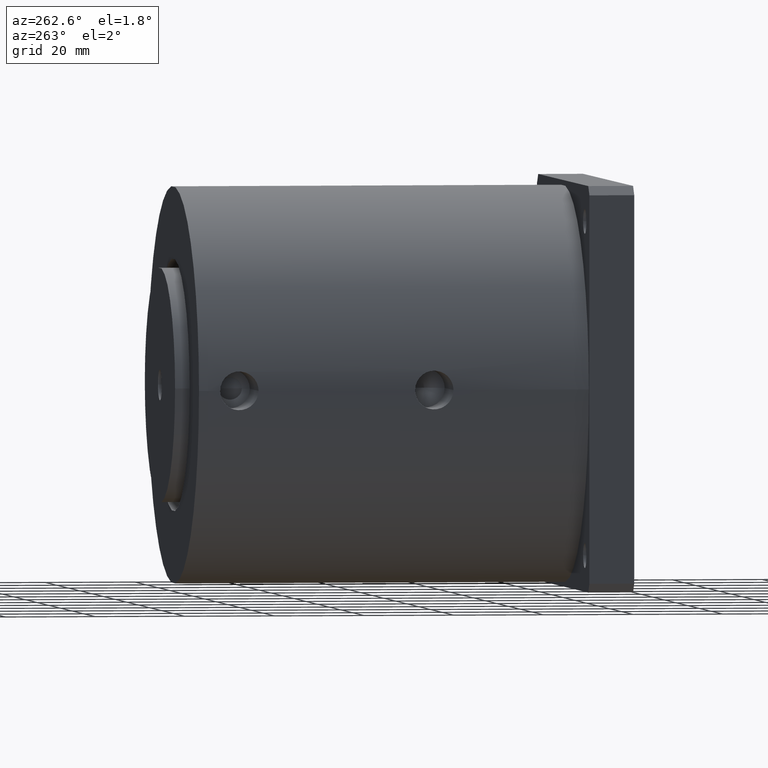
[diagram: clean part render]
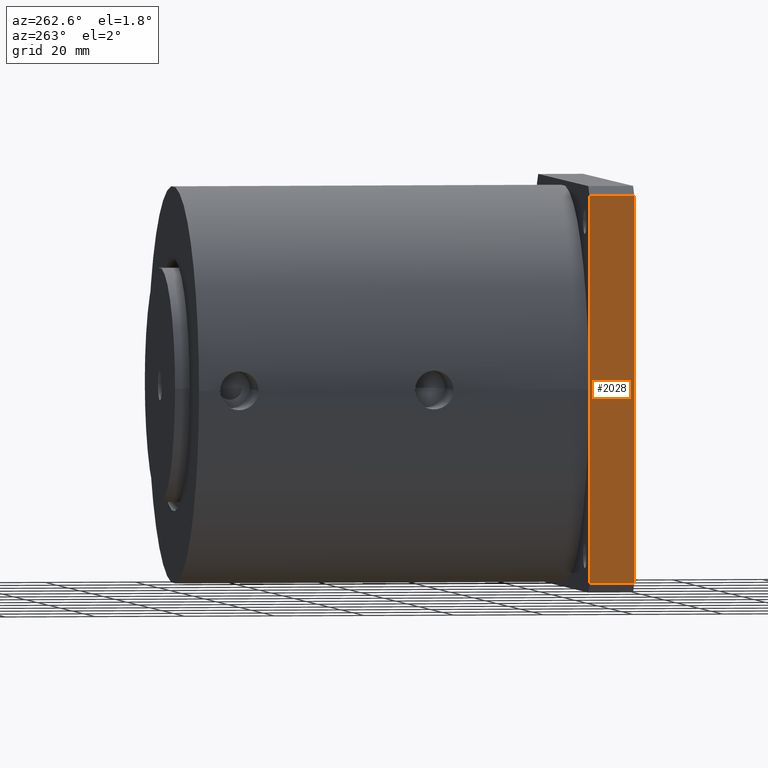
[diagram: same view with one face highlighted and labeled with its STEP entity id]
A machine part, auxiliary view. The second image highlights one B-rep face of the part: STEP entity #2028.
In plain terms, the highlighted planar face has unit normal (-1, 0, 0).
Its self-contained STEP definition (entity closure, byte-faithful):
#412=DIRECTION('',(0.E0,0.E0,1.E0));
#413=VECTOR('',#412,8.6E1);
#414=CARTESIAN_POINT('',(-4.5E1,0.E0,-4.3E1));
#415=LINE('',#414,#413);
#1110=DIRECTION('',(0.E0,0.E0,1.E0));
#1111=VECTOR('',#1110,8.6E1);
#1112=CARTESIAN_POINT('',(-4.5E1,1.E1,-4.3E1));
#1113=LINE('',#1112,#1111);
#1201=DIRECTION('',(0.E0,-1.E0,0.E0));
#1202=VECTOR('',#1201,1.E1);
#1203=CARTESIAN_POINT('',(-4.5E1,1.E1,-4.3E1));
#1204=LINE('',#1203,#1202);
#1208=DIRECTION('',(0.E0,-1.E0,0.E0));
#1209=VECTOR('',#1208,1.E1);
#1210=CARTESIAN_POINT('',(-4.5E1,1.E1,4.3E1));
#1211=LINE('',#1210,#1209);
#1255=CARTESIAN_POINT('',(-4.5E1,0.E0,-4.3E1));
#1257=VERTEX_POINT('',#1255);
#1261=CARTESIAN_POINT('',(-4.5E1,1.E1,-4.3E1));
#1262=VERTEX_POINT('',#1261);
#1280=CARTESIAN_POINT('',(-4.5E1,0.E0,4.3E1));
#1282=VERTEX_POINT('',#1280);
#1283=CARTESIAN_POINT('',(-4.5E1,1.E1,4.3E1));
#1284=VERTEX_POINT('',#1283);
#2017=CARTESIAN_POINT('',(-4.5E1,0.E0,-4.5E1));
#2018=DIRECTION('',(-1.E0,0.E0,0.E0));
#2019=DIRECTION('',(0.E0,0.E0,1.E0));
#2020=AXIS2_PLACEMENT_3D('',#2017,#2018,#2019);
#2021=PLANE('',#2020);
#2022=ORIENTED_EDGE('',*,*,#1934,.F.);
#2023=ORIENTED_EDGE('',*,*,#1820,.T.);
#2024=ORIENTED_EDGE('',*,*,#2010,.T.);
#2025=ORIENTED_EDGE('',*,*,#1344,.F.);
#2026=EDGE_LOOP('',(#2022,#2023,#2024,#2025));
#2027=FACE_OUTER_BOUND('',#2026,.F.);
#1344=EDGE_CURVE('',#1257,#1282,#415,.T.);
#1820=EDGE_CURVE('',#1262,#1284,#1113,.T.);
#1934=EDGE_CURVE('',#1262,#1257,#1204,.T.);
#2010=EDGE_CURVE('',#1284,#1282,#1211,.T.);
#2028=ADVANCED_FACE('',(#2027),#2021,.T.);